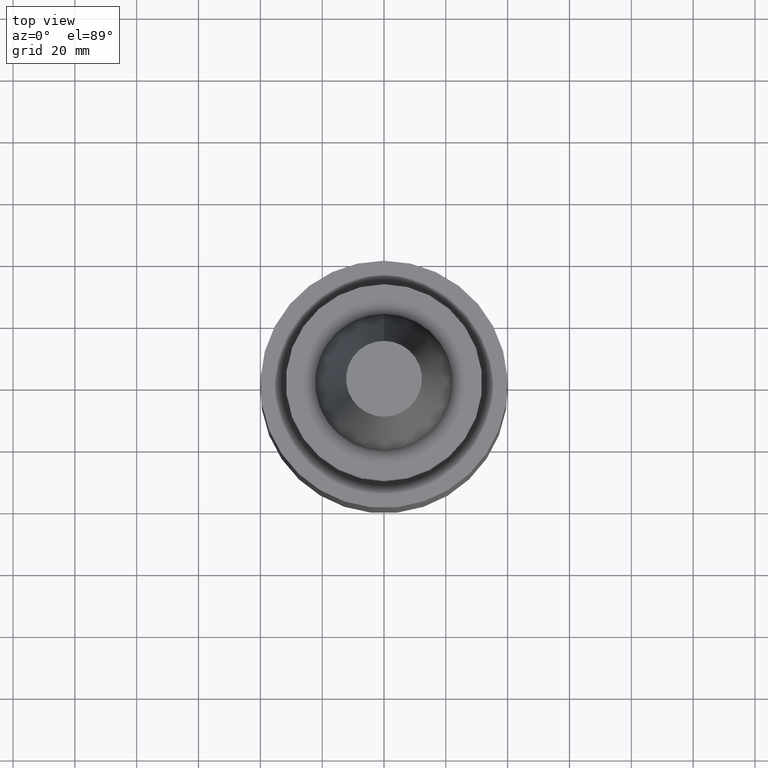
[diagram: clean part render]
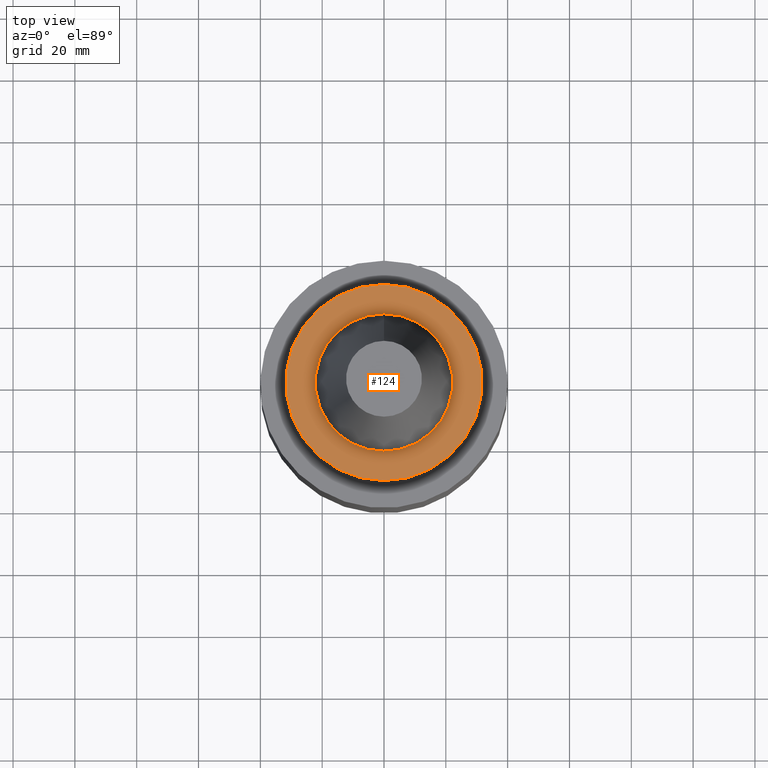
[diagram: same view with one face highlighted and labeled with its STEP entity id]
A machine part, top view. The second image highlights one B-rep face of the part: STEP entity #124.
In plain terms, the highlighted planar face has unit normal (-0, -0, 1).
Its self-contained STEP definition (entity closure, byte-faithful):
#79=EDGE_CURVE('Unnamed[1]',#194,#194,#195,.T.);
#124=ADVANCED_FACE('Unnamed[1]',(#262,#263),#264,.T.);
#139=EDGE_CURVE('Unnamed[1]',#286,#286,#287,.T.);
#194=VERTEX_POINT('',#343);
#195=CIRCLE('',#344,22.225);
#262=FACE_OUTER_BOUND('',#428,.T.);
#263=FACE_BOUND('',#429,.T.);
#264=PLANE('',#430);
#286=VERTEX_POINT('',#458);
#287=CIRCLE('',#459,31.75);
#343=CARTESIAN_POINT('',(6.12323399573674E-017,22.225,-0.999999999999997));
#344=AXIS2_PLACEMENT_3D('',#506,#507,#508);
#428=EDGE_LOOP('',(#579));
#429=EDGE_LOOP('',(#580));
#430=AXIS2_PLACEMENT_3D('',#581,#582,#583);
#458=CARTESIAN_POINT('',(6.12323399573673E-017,31.75,-0.999999999999996));
#459=AXIS2_PLACEMENT_3D('',#607,#608,#609);
#506=CARTESIAN_POINT('',(6.12323399573677E-017,1.22464679914735E-016,-1.0));
#507=DIRECTION('',(6.12323399573677E-017,1.22464679914735E-016,-1.0));
#508=DIRECTION('',(-1.23259516440783E-032,1.0,1.22464679914735E-016));
#579=ORIENTED_EDGE('',*,*,#139,.F.);
#580=ORIENTED_EDGE('',*,*,#79,.T.);
#581=CARTESIAN_POINT('',(6.12323399573673E-017,26.9875,-0.999999999999997));
#582=DIRECTION('',(-6.12323399573677E-017,-1.22464679914735E-016,1.0));
#583=DIRECTION('',(1.23259516440783E-032,-1.0,-1.22464679914735E-016));
#607=CARTESIAN_POINT('',(6.12323399573677E-017,1.22464679914735E-016,-1.0));
#608=DIRECTION('',(6.12323399573677E-017,1.22464679914735E-016,-1.0));
#609=DIRECTION('',(-1.23259516440783E-032,1.0,1.22464679914735E-016));